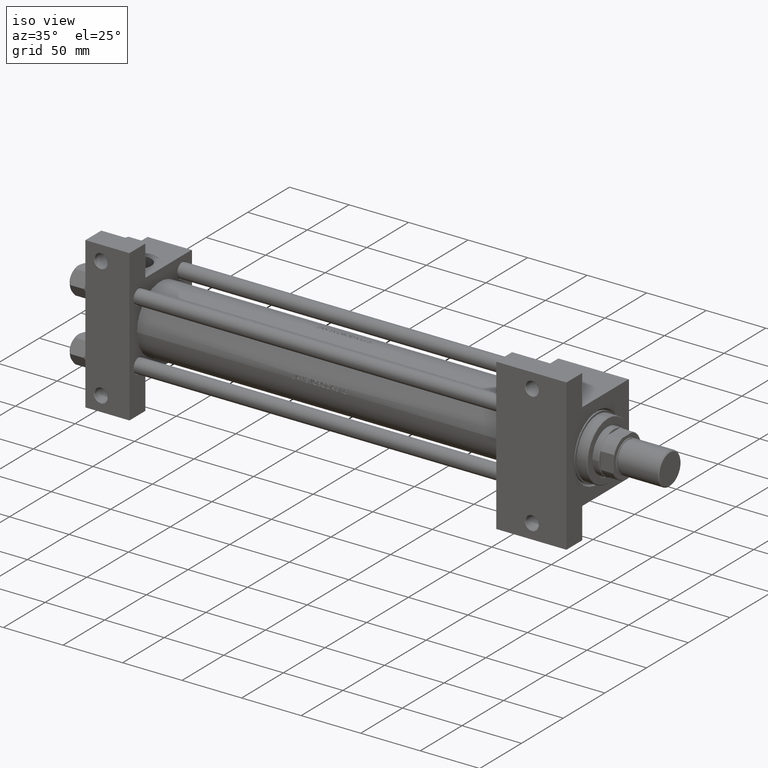
[diagram: clean part render]
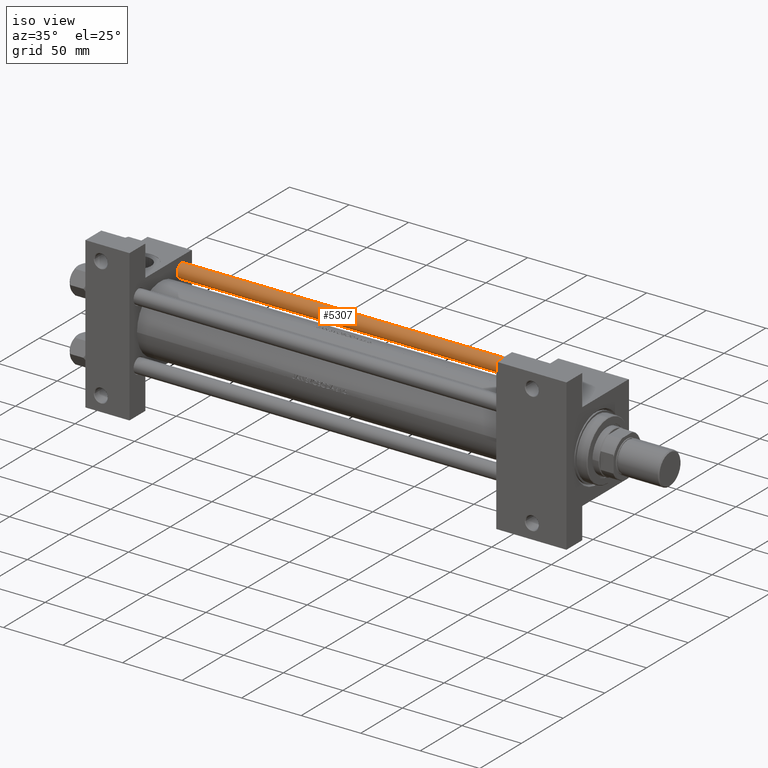
[diagram: same view with one face highlighted and labeled with its STEP entity id]
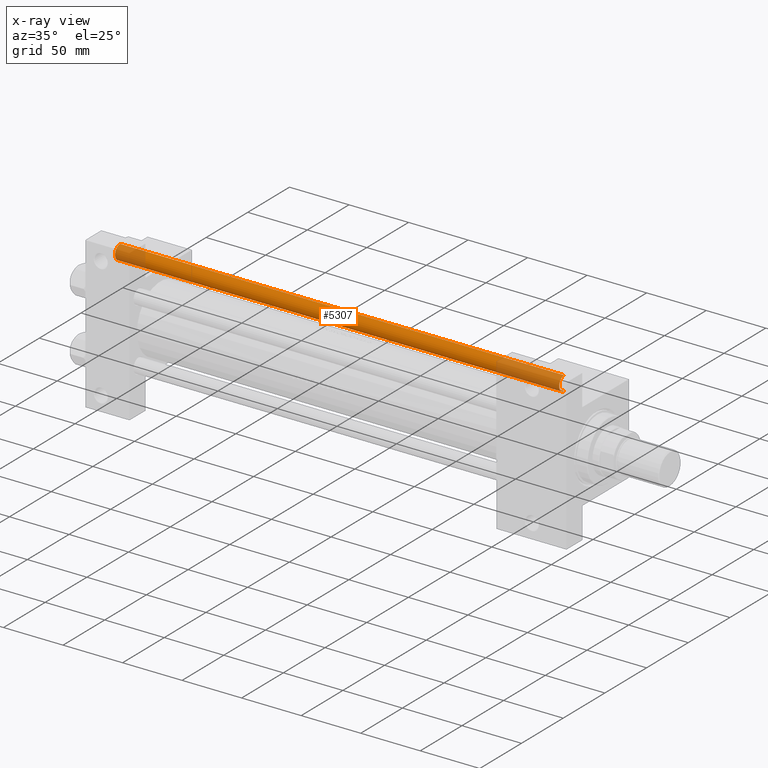
[diagram: x-ray of the same camera — body ghosted, the highlighted face saturated]
A machine part, iso view. The second image highlights one B-rep face of the part: STEP entity #5307.
The next image is the same camera in x-ray: the body ghosted, the highlighted face saturated — about 21% of this face is hidden behind the body in this view.
In plain terms, the highlighted cylindrical surface (edge-blend (fillet) strip) has radius 6 mm, axis along (-1, -0, -0).
Its self-contained STEP definition (entity closure, byte-faithful):
#1134 = CARTESIAN_POINT ( 'NONE',  ( -6.000000000000000888, 0.000000000000000000, 374.0000000000000000 ) ) ;
#2478 = EDGE_CURVE ( 'NONE', #5488, #22041, #15819, .T. ) ;
#5307 = ADVANCED_FACE ( 'NONE', ( #42114 ), #33538, .T. ) ;
#5325 = ORIENTED_EDGE ( 'NONE', *, *, #7232, .T. ) ;
#5488 = VERTEX_POINT ( 'NONE', #42486 ) ;
#6687 = DIRECTION ( 'NONE',  ( 1.000000000000000000, 0.000000000000000000, 0.000000000000000000 ) ) ;
#7232 = EDGE_CURVE ( 'NONE', #22041, #22906, #12162, .T. ) ;
#7985 = VECTOR ( 'NONE', #39346, 1000.000000000000000 ) ;
#8664 = ORIENTED_EDGE ( 'NONE', *, *, #2478, .T. ) ;
#9299 = CARTESIAN_POINT ( 'NONE',  ( 6.000000000000000888, 7.347880794884120722E-16, 373.5000000000001137 ) ) ;
#12162 = CIRCLE ( 'NONE', #22698, 6.000000000000000888 ) ;
#12322 = CARTESIAN_POINT ( 'NONE',  ( -6.000000000000000888, 0.000000000000000000, 0.5000000000000559552 ) ) ;
#13260 = DIRECTION ( 'NONE',  ( -0.000000000000000000, -0.000000000000000000, 1.000000000000000000 ) ) ;
#13763 = DIRECTION ( 'NONE',  ( 1.000000000000000000, 0.000000000000000000, 0.000000000000000000 ) ) ;
#14213 = LINE ( 'NONE', #45844, #41567 ) ;
#15819 = LINE ( 'NONE', #1134, #7985 ) ;
#18436 = EDGE_CURVE ( 'NONE', #47989, #5488, #34775, .T. ) ;
#19089 = CARTESIAN_POINT ( 'NONE',  ( 0.000000000000000000, 0.000000000000000000, 373.5000000000001137 ) ) ;
#21649 = DIRECTION ( 'NONE',  ( -1.000000000000000000, 0.000000000000000000, 0.000000000000000000 ) ) ;
#22041 = VERTEX_POINT ( 'NONE', #12322 ) ;
#22698 = AXIS2_PLACEMENT_3D ( 'NONE', #43894, #13260, #13763 ) ;
#22906 = VERTEX_POINT ( 'NONE', #47260 ) ;
#25711 = EDGE_CURVE ( 'NONE', #47989, #22906, #14213, .T. ) ;
#25878 = DIRECTION ( 'NONE',  ( -0.000000000000000000, -0.000000000000000000, -1.000000000000000000 ) ) ;
#27208 = ORIENTED_EDGE ( 'NONE', *, *, #18436, .T. ) ;
#29133 = AXIS2_PLACEMENT_3D ( 'NONE', #19089, #30493, #6687 ) ;
#29624 = EDGE_LOOP ( 'NONE', ( #38648, #27208, #8664, #5325 ) ) ;
#30493 = DIRECTION ( 'NONE',  ( 0.000000000000000000, 0.000000000000000000, -1.000000000000000000 ) ) ;
#33538 = CYLINDRICAL_SURFACE ( 'NONE', #44447, 6.000000000000000888 ) ;
#34775 = CIRCLE ( 'NONE', #29133, 6.000000000000000888 ) ;
#38648 = ORIENTED_EDGE ( 'NONE', *, *, #25711, .F. ) ;
#39346 = DIRECTION ( 'NONE',  ( -0.000000000000000000, -0.000000000000000000, -1.000000000000000000 ) ) ;
#41103 = CARTESIAN_POINT ( 'NONE',  ( 0.000000000000000000, 0.000000000000000000, 374.0000000000000000 ) ) ;
#41567 = VECTOR ( 'NONE', #25878, 1000.000000000000000 ) ;
#42114 = FACE_OUTER_BOUND ( 'NONE', #29624, .T. ) ;
#42486 = CARTESIAN_POINT ( 'NONE',  ( -6.000000000000000888, 0.000000000000000000, 373.5000000000001137 ) ) ;
#43894 = CARTESIAN_POINT ( 'NONE',  ( 0.000000000000000000, 0.000000000000000000, 0.5000000000000559552 ) ) ;
#44447 = AXIS2_PLACEMENT_3D ( 'NONE', #41103, #48710, #21649 ) ;
#45844 = CARTESIAN_POINT ( 'NONE',  ( 6.000000000000000888, 7.347880794884120722E-16, 374.0000000000000000 ) ) ;
#47260 = CARTESIAN_POINT ( 'NONE',  ( 6.000000000000000888, 7.347880794884120722E-16, 0.5000000000000559552 ) ) ;
#47989 = VERTEX_POINT ( 'NONE', #9299 ) ;
#48710 = DIRECTION ( 'NONE',  ( -0.000000000000000000, -0.000000000000000000, -1.000000000000000000 ) ) ;